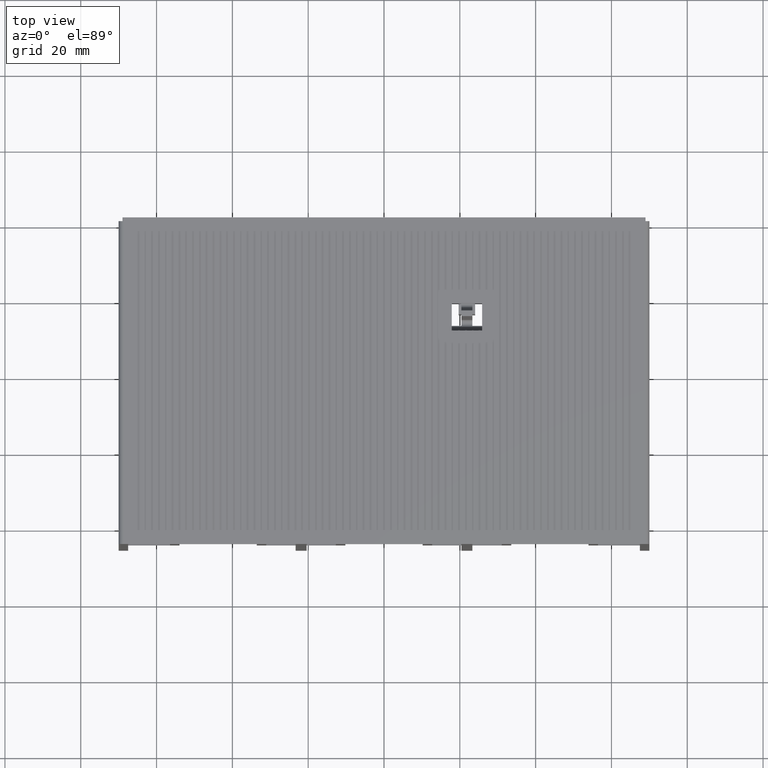
[diagram: clean part render]
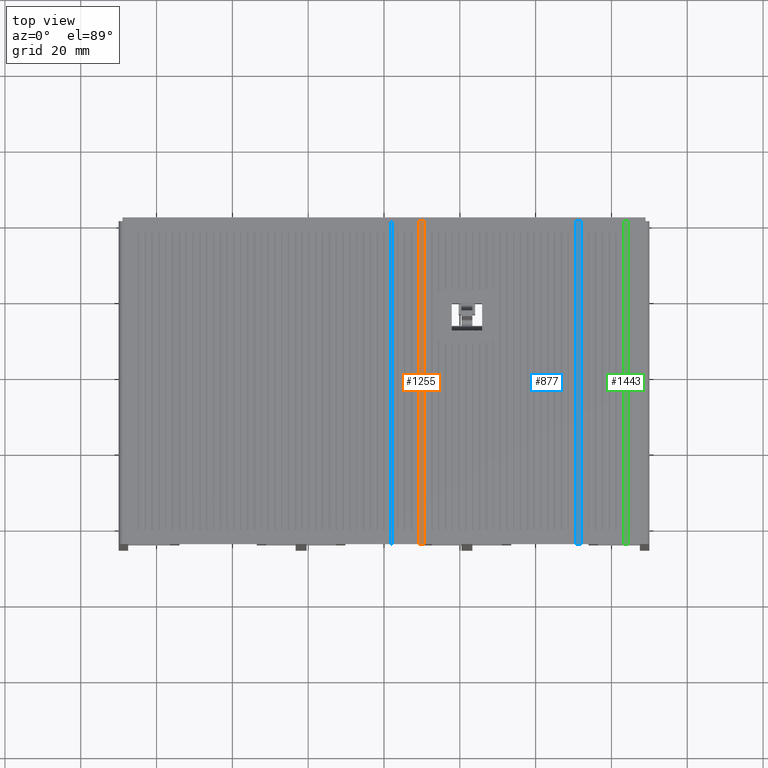
[diagram: same view with three faces highlighted in distinct colors, each labeled with its STEP entity id]
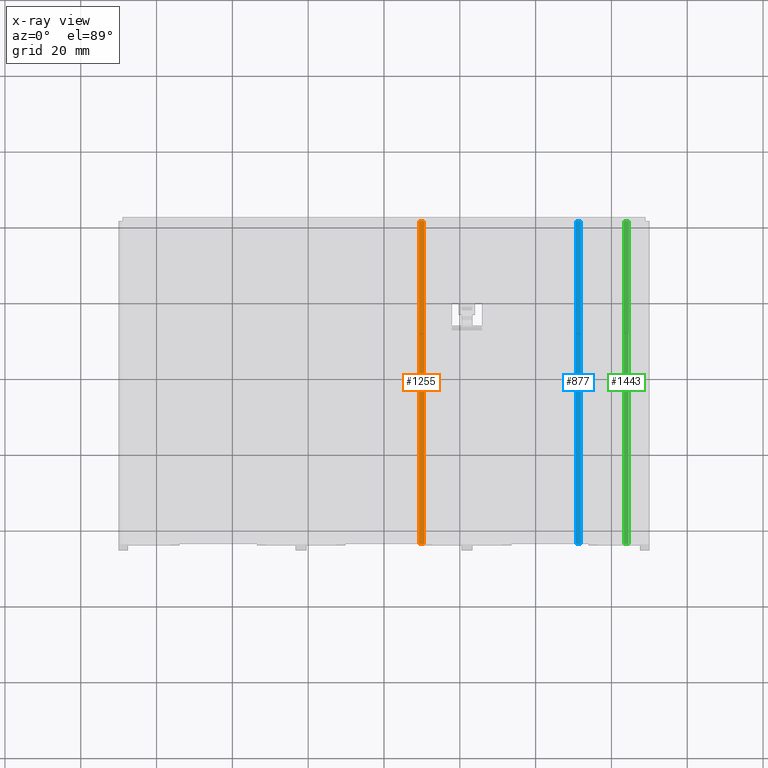
[diagram: x-ray of the same camera — body ghosted, the three highlighted faces saturated]
A machine part, top view with three faces highlighted in distinct colors.
The next image is the same camera in x-ray (body ghosted, the three faces saturated) — at least one of them is partly hidden behind the body in this view.
Their STEP definitions:

[orange] entity #1255 — the highlighted planar face has unit normal (0, 0, 1).
#1255 = ADVANCED_FACE( '', ( #2643 ), #2644, .T. );
#2643 = FACE_OUTER_BOUND( '', #4153, .T. );
#2644 = PLANE( '', #4154 );
#4153 = EDGE_LOOP( '', ( #8070, #8071, #8072, #8073 ) );
#4154 = AXIS2_PLACEMENT_3D( '', #8074, #8075, #8076 );
#8070 = ORIENTED_EDGE( '', *, *, #11230, .F. );
#8071 = ORIENTED_EDGE( '', *, *, #9987, .T. );
#8072 = ORIENTED_EDGE( '', *, *, #11231, .F. );
#8073 = ORIENTED_EDGE( '', *, *, #11232, .F. );
#8074 = CARTESIAN_POINT( '', ( -68.7000000000000, -85.2000000000000, 0.000000000000000 ) );
#8075 = DIRECTION( '', ( 0.000000000000000, 0.000000000000000, 1.00000000000000 ) );
#8076 = DIRECTION( '', ( 1.00000000000000, 0.000000000000000, -0.000000000000000 ) );
#9987 = EDGE_CURVE( '', #12364, #12362, #12365, .T. );
#11230 = EDGE_CURVE( '', #12364, #14180, #14181, .T. );
#11231 = EDGE_CURVE( '', #14182, #12362, #14183, .T. );
#11232 = EDGE_CURVE( '', #14180, #14182, #14184, .T. );
#12362 = VERTEX_POINT( '', #15749 );
#12364 = VERTEX_POINT( '', #15752 );
#12365 = LINE( '', #15753, #15754 );
#14180 = VERTEX_POINT( '', #18496 );
#14181 = LINE( '', #18497, #18498 );
#14182 = VERTEX_POINT( '', #18499 );
#14183 = LINE( '', #18500, #18501 );
#14184 = LINE( '', #18502, #18503 );
#15749 = CARTESIAN_POINT( '', ( 10.5499999999999, -85.2000000000000, 0.000000000000000 ) );
#15752 = CARTESIAN_POINT( '', ( 9.24999999999995, -85.2000000000000, 0.000000000000000 ) );
#15753 = CARTESIAN_POINT( '', ( -68.7000000000000, -85.2000000000000, 0.000000000000000 ) );
#15754 = VECTOR( '', #19374, 1000.00000000000 );
#18496 = CARTESIAN_POINT( '', ( 9.24999999999995, 0.000000000000000, 0.000000000000000 ) );
#18497 = CARTESIAN_POINT( '', ( 9.24999999999995, -85.2000000000000, 0.000000000000000 ) );
#18498 = VECTOR( '', #20317, 1000.00000000000 );
#18499 = CARTESIAN_POINT( '', ( 10.5499999999999, 0.000000000000000, 0.000000000000000 ) );
#18500 = CARTESIAN_POINT( '', ( 10.5499999999999, 0.000000000000000, 0.000000000000000 ) );
#18501 = VECTOR( '', #20318, 1000.00000000000 );
#18502 = CARTESIAN_POINT( '', ( -68.7000000000000, 0.000000000000000, 0.000000000000000 ) );
#18503 = VECTOR( '', #20319, 1000.00000000000 );
#19374 = DIRECTION( '', ( 1.00000000000000, 0.000000000000000, 0.000000000000000 ) );
#20317 = DIRECTION( '', ( 0.000000000000000, 1.00000000000000, 0.000000000000000 ) );
#20318 = DIRECTION( '', ( 0.000000000000000, -1.00000000000000, 0.000000000000000 ) );
#20319 = DIRECTION( '', ( 1.00000000000000, 0.000000000000000, 0.000000000000000 ) );

[blue] entity #877 — the highlighted planar face has unit normal (0, 0, 1).
#877 = ADVANCED_FACE( '', ( #2074 ), #2075, .T. );
#2074 = FACE_OUTER_BOUND( '', #3584, .T. );
#2075 = PLANE( '', #3585 );
#3584 = EDGE_LOOP( '', ( #6447, #6448, #6449, #6450 ) );
#3585 = AXIS2_PLACEMENT_3D( '', #6451, #6452, #6453 );
#6447 = ORIENTED_EDGE( '', *, *, #10654, .F. );
#6448 = ORIENTED_EDGE( '', *, *, #9909, .T. );
#6449 = ORIENTED_EDGE( '', *, *, #10246, .F. );
#6450 = ORIENTED_EDGE( '', *, *, #10655, .F. );
#6451 = CARTESIAN_POINT( '', ( -68.7000000000000, -85.2000000000000, 0.000000000000000 ) );
#6452 = DIRECTION( '', ( 0.000000000000000, 0.000000000000000, 1.00000000000000 ) );
#6453 = DIRECTION( '', ( 1.00000000000000, 0.000000000000000, -0.000000000000000 ) );
#9909 = EDGE_CURVE( '', #12220, #12218, #12221, .T. );
#10246 = EDGE_CURVE( '', #12816, #12218, #12817, .T. );
#10654 = EDGE_CURVE( '', #12220, #13429, #13430, .T. );
#10655 = EDGE_CURVE( '', #13429, #12816, #13431, .T. );
#12218 = VERTEX_POINT( '', #15527 );
#12220 = VERTEX_POINT( '', #15530 );
#12221 = LINE( '', #15531, #15532 );
#12816 = VERTEX_POINT( '', #16438 );
#12817 = LINE( '', #16439, #16440 );
#13429 = VERTEX_POINT( '', #17362 );
#13430 = LINE( '', #17363, #17364 );
#13431 = LINE( '', #17365, #17366 );
#15527 = CARTESIAN_POINT( '', ( 51.9499999999999, -85.2000000000000, 0.000000000000000 ) );
#15530 = CARTESIAN_POINT( '', ( 50.6499999999999, -85.2000000000000, 0.000000000000000 ) );
#15531 = CARTESIAN_POINT( '', ( -68.7000000000000, -85.2000000000000, 0.000000000000000 ) );
#15532 = VECTOR( '', #19296, 1000.00000000000 );
#16438 = CARTESIAN_POINT( '', ( 51.9499999999999, 0.000000000000000, 0.000000000000000 ) );
#16439 = CARTESIAN_POINT( '', ( 51.9499999999999, 0.000000000000000, 0.000000000000000 ) );
#16440 = VECTOR( '', #19611, 1000.00000000000 );
#17362 = CARTESIAN_POINT( '', ( 50.6499999999999, 0.000000000000000, 0.000000000000000 ) );
#17363 = CARTESIAN_POINT( '', ( 50.6499999999999, -85.2000000000000, 0.000000000000000 ) );
#17364 = VECTOR( '', #19922, 1000.00000000000 );
#17365 = CARTESIAN_POINT( '', ( -68.7000000000000, 0.000000000000000, 0.000000000000000 ) );
#17366 = VECTOR( '', #19923, 1000.00000000000 );
#19296 = DIRECTION( '', ( 1.00000000000000, 0.000000000000000, 0.000000000000000 ) );
#19611 = DIRECTION( '', ( 0.000000000000000, -1.00000000000000, 0.000000000000000 ) );
#19922 = DIRECTION( '', ( 0.000000000000000, 1.00000000000000, 0.000000000000000 ) );
#19923 = DIRECTION( '', ( 1.00000000000000, 0.000000000000000, 0.000000000000000 ) );

[green] entity #1443 — the highlighted planar face has unit normal (0, 0, 1).
#1443 = ADVANCED_FACE( '', ( #2927 ), #2928, .T. );
#2927 = FACE_OUTER_BOUND( '', #4437, .T. );
#2928 = PLANE( '', #4438 );
#4437 = EDGE_LOOP( '', ( #9226, #9227, #9228, #9229 ) );
#4438 = AXIS2_PLACEMENT_3D( '', #9230, #9231, #9232 );
#9226 = ORIENTED_EDGE( '', *, *, #11466, .F. );
#9227 = ORIENTED_EDGE( '', *, *, #9882, .T. );
#9228 = ORIENTED_EDGE( '', *, *, #11364, .F. );
#9229 = ORIENTED_EDGE( '', *, *, #11354, .F. );
#9230 = CARTESIAN_POINT( '', ( -68.7000000000000, -85.2000000000000, 0.000000000000000 ) );
#9231 = DIRECTION( '', ( 0.000000000000000, 0.000000000000000, 1.00000000000000 ) );
#9232 = DIRECTION( '', ( 1.00000000000000, 0.000000000000000, -0.000000000000000 ) );
#9882 = EDGE_CURVE( '', #12167, #12165, #12168, .T. );
#11354 = EDGE_CURVE( '', #14325, #14327, #14328, .T. );
#11364 = EDGE_CURVE( '', #14327, #12165, #14339, .T. );
#11466 = EDGE_CURVE( '', #12167, #14325, #14448, .T. );
#12165 = VERTEX_POINT( '', #15447 );
#12167 = VERTEX_POINT( '', #15450 );
#12168 = LINE( '', #15451, #15452 );
#14325 = VERTEX_POINT( '', #18732 );
#14327 = VERTEX_POINT( '', #18735 );
#14328 = LINE( '', #18736, #18737 );
#14339 = LINE( '', #18754, #18755 );
#14448 = LINE( '', #18905, #18906 );
#15447 = CARTESIAN_POINT( '', ( 64.5499999999999, -85.2000000000000, 0.000000000000000 ) );
#15450 = CARTESIAN_POINT( '', ( 63.2499999999999, -85.2000000000000, 0.000000000000000 ) );
#15451 = CARTESIAN_POINT( '', ( -68.7000000000000, -85.2000000000000, 0.000000000000000 ) );
#15452 = VECTOR( '', #19269, 1000.00000000000 );
#18732 = CARTESIAN_POINT( '', ( 63.2499999999999, 0.000000000000000, 0.000000000000000 ) );
#18735 = CARTESIAN_POINT( '', ( 64.5499999999999, 0.000000000000000, 0.000000000000000 ) );
#18736 = CARTESIAN_POINT( '', ( -68.7000000000000, 0.000000000000000, 0.000000000000000 ) );
#18737 = VECTOR( '', #20412, 1000.00000000000 );
#18754 = CARTESIAN_POINT( '', ( 64.5499999999999, 0.000000000000000, 0.000000000000000 ) );
#18755 = VECTOR( '', #20419, 1000.00000000000 );
#18905 = CARTESIAN_POINT( '', ( 63.2499999999999, -85.2000000000000, 0.000000000000000 ) );
#18906 = VECTOR( '', #20461, 1000.00000000000 );
#19269 = DIRECTION( '', ( 1.00000000000000, 0.000000000000000, 0.000000000000000 ) );
#20412 = DIRECTION( '', ( 1.00000000000000, 0.000000000000000, 0.000000000000000 ) );
#20419 = DIRECTION( '', ( 0.000000000000000, -1.00000000000000, 0.000000000000000 ) );
#20461 = DIRECTION( '', ( 0.000000000000000, 1.00000000000000, 0.000000000000000 ) );